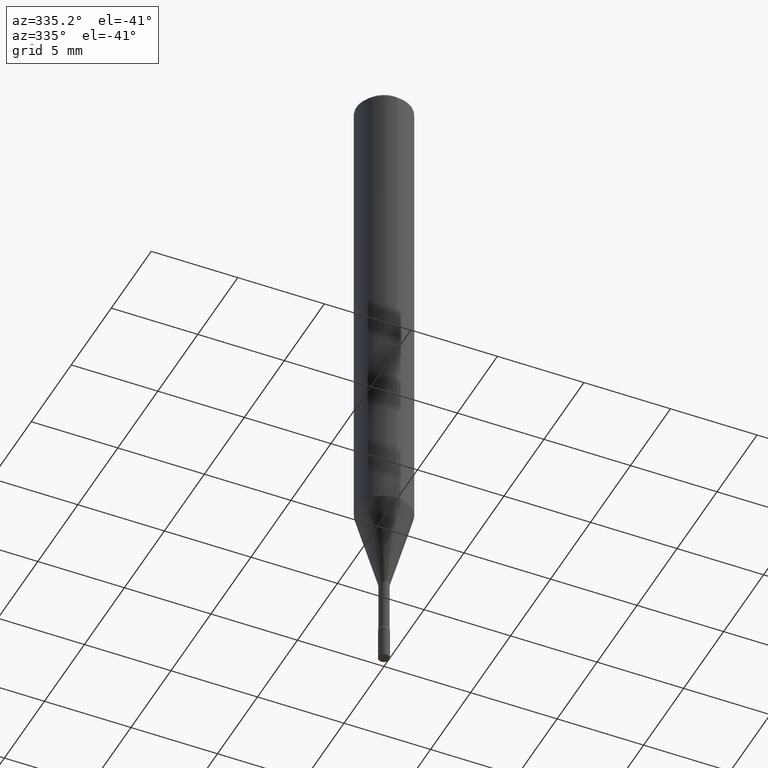
[diagram: clean part render]
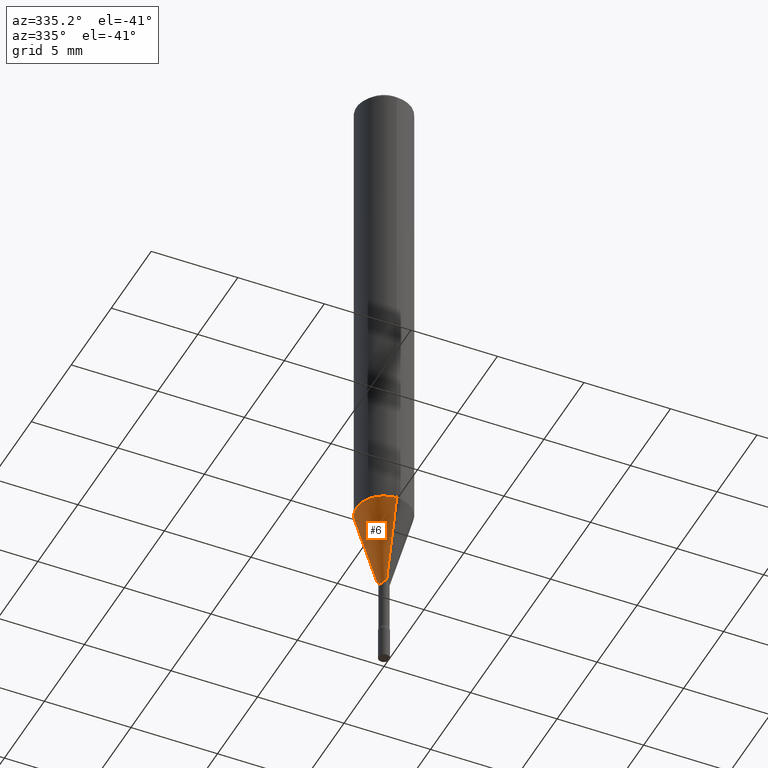
[diagram: same view with one face highlighted and labeled with its STEP entity id]
A machine part, auxiliary view. The second image highlights one B-rep face of the part: STEP entity #6.
In plain terms, the highlighted conical surface has half-angle 15 deg.
Its self-contained STEP definition (entity closure, byte-faithful):
#6 = ADVANCED_FACE ( 'NONE', ( #390 ), #345, .T. ) ;
#29 = CARTESIAN_POINT ( 'NONE',  ( 2.715880977445467390E-29, -3.877709302869931767E-15, -1.110598421515879952 ) ) ;
#31 = DIRECTION ( 'NONE',  ( -1.807323732225328167E-15, -0.2588190451025179084, 0.9659258262890690894 ) ) ;
#37 = CARTESIAN_POINT ( 'NONE',  ( 2.656048273965166204E-16, 0.01226111260565944903, -1.298092501787273090 ) ) ;
#57 = EDGE_CURVE ( 'NONE', #325, #80, #343, .T. ) ;
#80 = VERTEX_POINT ( 'NONE', #230 ) ;
#101 = DIRECTION ( 'NONE',  ( -2.445421247527529445E-29, 3.491549445547709881E-15, 1.000000000000000000 ) ) ;
#112 = CIRCLE ( 'NONE', #483, 0.06250000000000000000 ) ;
#117 = EDGE_CURVE ( 'NONE', #416, #204, #268, .T. ) ;
#132 = ORIENTED_EDGE ( 'NONE', *, *, #117, .F. ) ;
#164 = CARTESIAN_POINT ( 'NONE',  ( 4.440892098500896347E-16, 0.06249999999999612116, -1.110598421515880174 ) ) ;
#173 = DIRECTION ( 'NONE',  ( -2.445421247527529445E-29, 3.491549445547709881E-15, 1.000000000000000000 ) ) ;
#200 = EDGE_CURVE ( 'NONE', #416, #325, #313, .T. ) ;
#204 = VERTEX_POINT ( 'NONE', #164 ) ;
#227 = AXIS2_PLACEMENT_3D ( 'NONE', #384, #173, #303 ) ;
#230 = CARTESIAN_POINT ( 'NONE',  ( -4.364351673553645523E-16, -0.06250000000000388578, -1.110598421515879730 ) ) ;
#268 = LINE ( 'NONE', #306, #421 ) ;
#284 = ORIENTED_EDGE ( 'NONE', *, *, #57, .T. ) ;
#303 = DIRECTION ( 'NONE',  ( -6.982962677686265133E-15, -1.000000000000000000, 0.000000000000000000 ) ) ;
#306 = CARTESIAN_POINT ( 'NONE',  ( 8.712044494294308837E-17, 0.01226111260565944903, -1.298092501787273090 ) ) ;
#313 = CIRCLE ( 'NONE', #412, 0.01226111260566398187 ) ;
#325 = VERTEX_POINT ( 'NONE', #465 ) ;
#343 = LINE ( 'NONE', #435, #459 ) ;
#345 = CONICAL_SURFACE ( 'NONE', #227, 0.01226111260566398187, 0.2617993877991499629 ) ;
#349 = EDGE_CURVE ( 'NONE', #204, #80, #112, .T. ) ;
#381 = DIRECTION ( 'NONE',  ( -6.982962677686265133E-15, -1.000000000000000000, 0.000000000000000000 ) ) ;
#384 = CARTESIAN_POINT ( 'NONE',  ( 3.174382985126765064E-29, -4.532354154884992382E-15, -1.298092501787273090 ) ) ;
#390 = FACE_OUTER_BOUND ( 'NONE', #411, .T. ) ;
#407 = ORIENTED_EDGE ( 'NONE', *, *, #200, .T. ) ;
#411 = EDGE_LOOP ( 'NONE', ( #132, #407, #284, #420 ) ) ;
#412 = AXIS2_PLACEMENT_3D ( 'NONE', #457, #422, #381 ) ;
#416 = VERTEX_POINT ( 'NONE', #37 ) ;
#420 = ORIENTED_EDGE ( 'NONE', *, *, #349, .F. ) ;
#421 = VECTOR ( 'NONE', #439, 39.37007874015748854 ) ;
#422 = DIRECTION ( 'NONE',  ( -2.445421247527529445E-29, 3.491549445547709881E-15, 1.000000000000000000 ) ) ;
#428 = DIRECTION ( 'NONE',  ( -6.982962677686265922E-15, -1.000000000000000000, 4.370956789862821150E-15 ) ) ;
#435 = CARTESIAN_POINT ( 'NONE',  ( -8.561889171222843884E-17, -0.01226111260566851470, -1.298092501787273090 ) ) ;
#439 = DIRECTION ( 'NONE',  ( 1.839019923739597949E-15, 0.2588190451025246253, 0.9659258262890670910 ) ) ;
#457 = CARTESIAN_POINT ( 'NONE',  ( 3.174382985126765064E-29, -4.532354154884992382E-15, -1.298092501787273090 ) ) ;
#459 = VECTOR ( 'NONE', #31, 39.37007874015748143 ) ;
#465 = CARTESIAN_POINT ( 'NONE',  ( -8.561889171222843884E-17, -0.01226111260566851470, -1.298092501787273090 ) ) ;
#483 = AXIS2_PLACEMENT_3D ( 'NONE', #29, #101, #428 ) ;